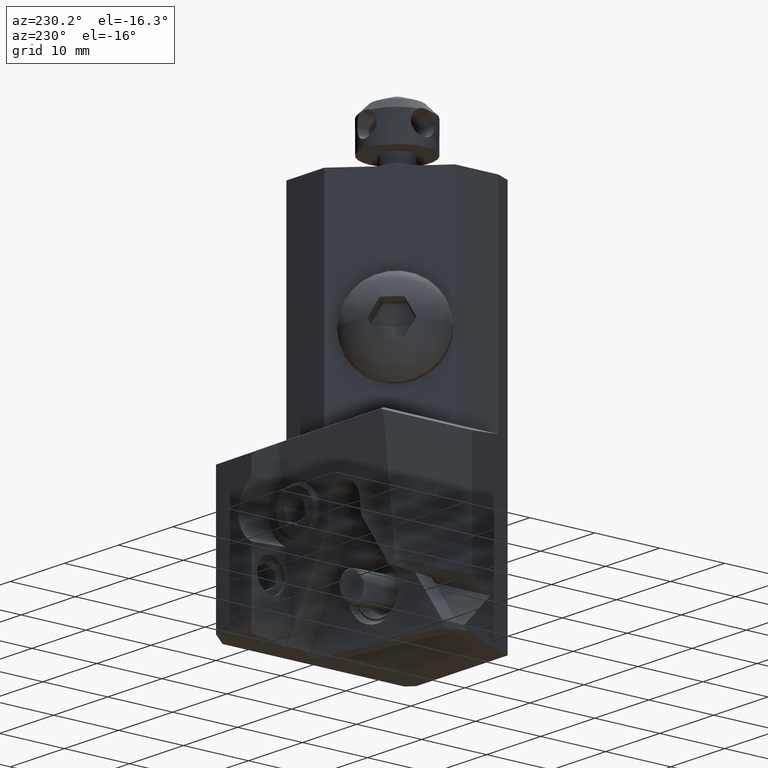
[diagram: clean part render]
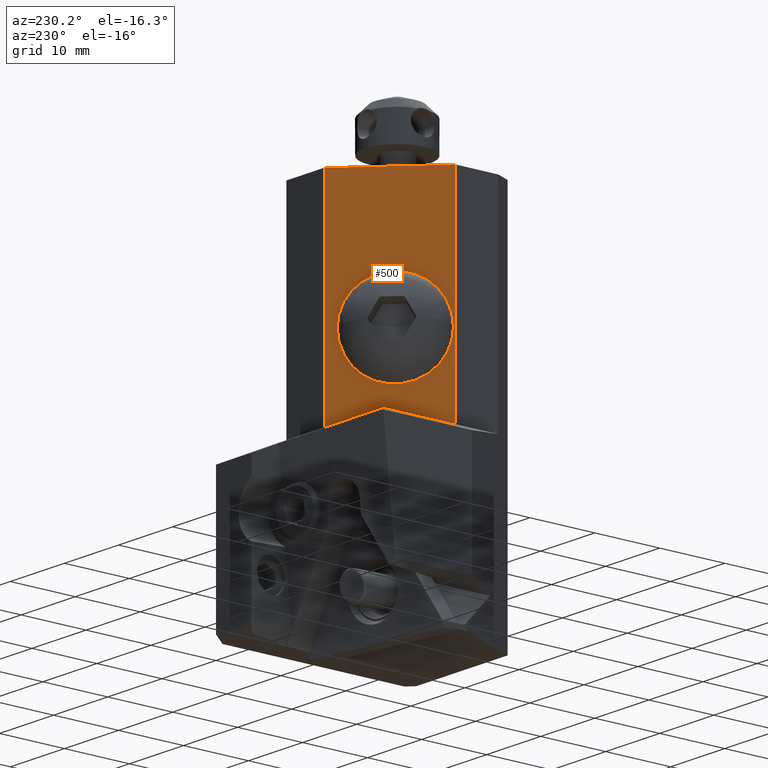
[diagram: same view with one face highlighted and labeled with its STEP entity id]
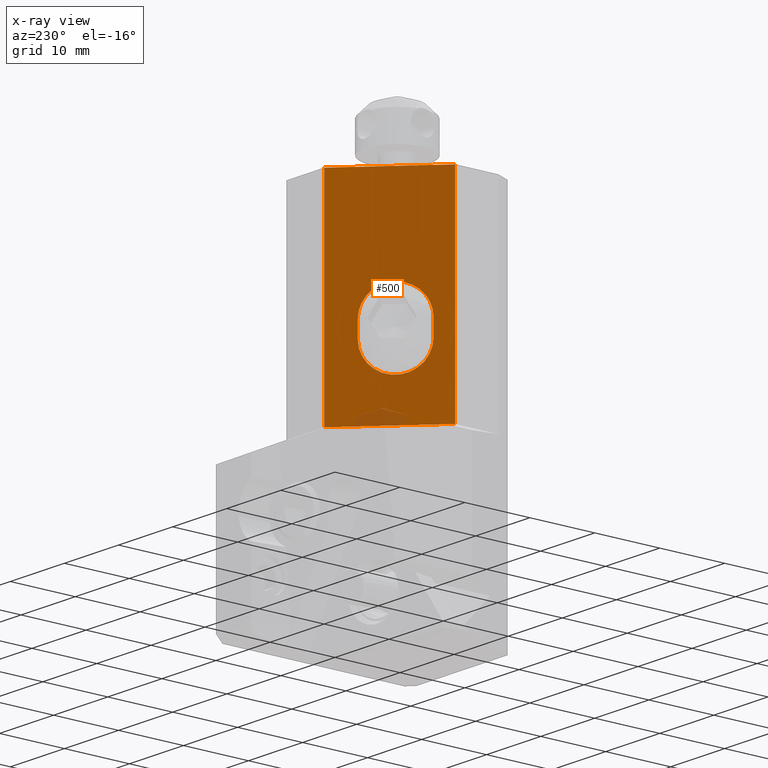
[diagram: x-ray of the same camera — body ghosted, the highlighted face saturated]
A machine part, auxiliary view. The second image highlights one B-rep face of the part: STEP entity #500.
The next image is the same camera in x-ray: the body ghosted, the highlighted face saturated — about 3% of this face is hidden behind the body in this view.
In plain terms, the highlighted planar face has unit normal (0.7071, -0.7071, 0).
Its self-contained STEP definition (entity closure, byte-faithful):
#229=FACE_BOUND('',#1009,.T.);
#230=FACE_BOUND('',#1010,.T.);
#321=CIRCLE('',#4030,4.5);
#325=CIRCLE('',#4038,4.5);
#326=CIRCLE('',#4039,4.5);
#500=ADVANCED_FACE('',(#229,#230),#713,.F.);
#713=PLANE('',#4041);
#1009=EDGE_LOOP('',(#1294,#1295,#1296,#1297));
#1010=EDGE_LOOP('',(#1298,#1299,#1300,#1301,#1302));
#1294=ORIENTED_EDGE('',*,*,#2772,.T.);
#1295=ORIENTED_EDGE('',*,*,#2773,.T.);
#1296=ORIENTED_EDGE('',*,*,#2774,.T.);
#1297=ORIENTED_EDGE('',*,*,#2775,.T.);
#1298=ORIENTED_EDGE('',*,*,#2767,.F.);
#1299=ORIENTED_EDGE('',*,*,#2766,.F.);
#1300=ORIENTED_EDGE('',*,*,#2776,.T.);
#1301=ORIENTED_EDGE('',*,*,#2754,.F.);
#1302=ORIENTED_EDGE('',*,*,#2759,.F.);
#2394=VERTEX_POINT('',#5635);
#2395=VERTEX_POINT('',#5636);
#2398=VERTEX_POINT('',#5645);
#2402=VERTEX_POINT('',#5656);
#2403=VERTEX_POINT('',#5658);
#2408=VERTEX_POINT('',#5730);
#2409=VERTEX_POINT('',#5731);
#2410=VERTEX_POINT('',#5733);
#2411=VERTEX_POINT('',#5735);
#2754=EDGE_CURVE('',#2394,#2395,#321,.T.);
#2759=EDGE_CURVE('',#2398,#2394,#3311,.T.);
#2766=EDGE_CURVE('',#2402,#2403,#325,.T.);
#2767=EDGE_CURVE('',#2403,#2398,#326,.T.);
#2772=EDGE_CURVE('',#2408,#2409,#3315,.T.);
#2773=EDGE_CURVE('',#2409,#2410,#3316,.T.);
#2774=EDGE_CURVE('',#2410,#2411,#3317,.T.);
#2775=EDGE_CURVE('',#2411,#2408,#3318,.T.);
#2776=EDGE_CURVE('',#2402,#2395,#3319,.T.);
#3311=LINE('',#5644,#3590);
#3315=LINE('',#5729,#3594);
#3316=LINE('',#5732,#3595);
#3317=LINE('',#5734,#3596);
#3318=LINE('',#5736,#3597);
#3319=LINE('',#5737,#3598);
#3590=VECTOR('',#4518,1.);
#3594=VECTOR('',#4536,1.);
#3595=VECTOR('',#4537,1.);
#3596=VECTOR('',#4538,1.);
#3597=VECTOR('',#4539,1.);
#3598=VECTOR('',#4540,1.);
#4030=AXIS2_PLACEMENT_3D('',#5634,#4508,#4509);
#4038=AXIS2_PLACEMENT_3D('',#5657,#4530,#4531);
#4039=AXIS2_PLACEMENT_3D('',#5659,#4532,#4533);
#4041=AXIS2_PLACEMENT_3D('',#5738,#4541,#4542);
#4508=DIRECTION('',(-0.707106781186548,0.707106781186548,0.));
#4509=DIRECTION('',(0.707106781186548,0.707106781186547,0.));
#4518=DIRECTION('',(0.,0.,-1.));
#4530=DIRECTION('',(-0.707106781186548,0.707106781186548,0.));
#4531=DIRECTION('',(-0.707106781186547,-0.707106781186548,0.));
#4532=DIRECTION('',(-0.707106781186548,0.707106781186548,0.));
#4533=DIRECTION('',(0.,0.,1.));
#4536=DIRECTION('',(0.,0.,-1.));
#4537=DIRECTION('',(-0.707106781186498,-0.707106781186598,-6.98924646911598E-14));
#4538=DIRECTION('',(-1.199040866595E-14,0.,1.));
#4539=DIRECTION('',(0.707106781186547,0.707106781186547,0.));
#4540=DIRECTION('',(9.947598300641E-14,1.001865257422E-13,-1.));
#4541=DIRECTION('',(0.707106781186547,-0.707106781186547,0.));
#4542=DIRECTION('',(-0.707106781186547,-0.707106781186547,0.));
#5634=CARTESIAN_POINT('',(-14.00071426749,14.00071426749,-21.25));
#5635=CARTESIAN_POINT('',(-10.81873375215,17.18269478283,-21.25));
#5636=CARTESIAN_POINT('',(-17.18269478283,10.81873375215,-21.25));
#5644=CARTESIAN_POINT('',(-10.81873375215,17.18269478283,-18.75));
#5645=CARTESIAN_POINT('',(-10.81873375215,17.18269478283,-18.75));
#5656=CARTESIAN_POINT('',(-17.18269478283,10.81873375215,-18.75));
#5657=CARTESIAN_POINT('',(-14.00071426749,14.00071426749,-18.75));
#5658=CARTESIAN_POINT('',(-14.00071426749,14.00071426749,-14.25));
#5659=CARTESIAN_POINT('',(-14.00071426749,14.00071426749,-18.75));
#5729=CARTESIAN_POINT('',(-8.001428534987,20.,0.));
#5730=CARTESIAN_POINT('',(-8.001428534987,20.,0.));
#5731=CARTESIAN_POINT('',(-8.001428534987,20.,-32.));
#5732=CARTESIAN_POINT('',(-8.001428534987,20.,-32.));
#5733=CARTESIAN_POINT('',(-19.,9.001428534987,-32.));
#5734=CARTESIAN_POINT('',(-19.,9.001428534987,-32.));
#5735=CARTESIAN_POINT('',(-19.,9.001428534987,0.));
#5736=CARTESIAN_POINT('',(-19.,9.001428534987,0.));
#5737=CARTESIAN_POINT('',(-17.18269478283,10.81873375215,-18.75));
#5738=CARTESIAN_POINT('',(-13.50071426749,14.50071426749,-16.));